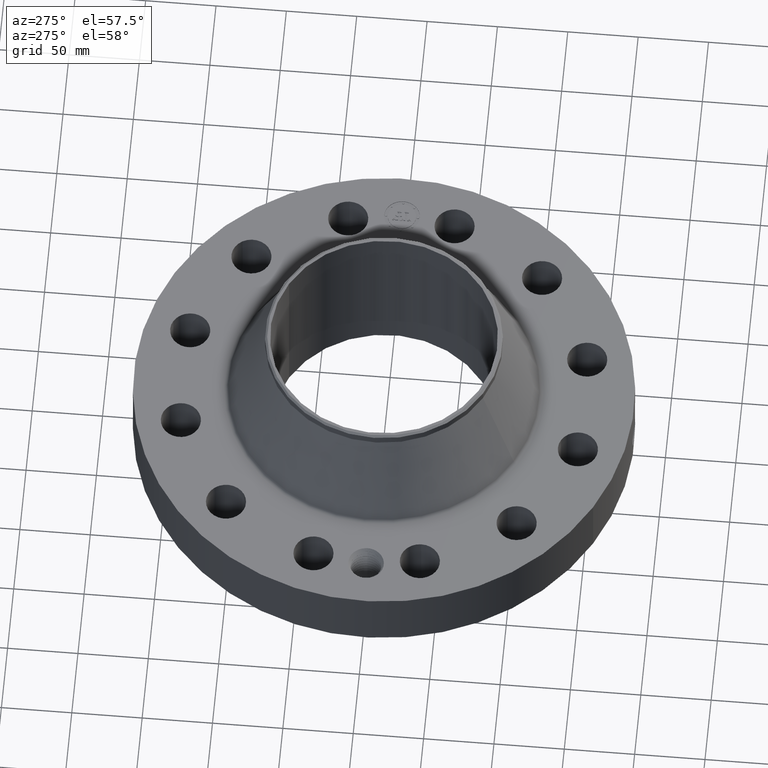
[diagram: clean part render]
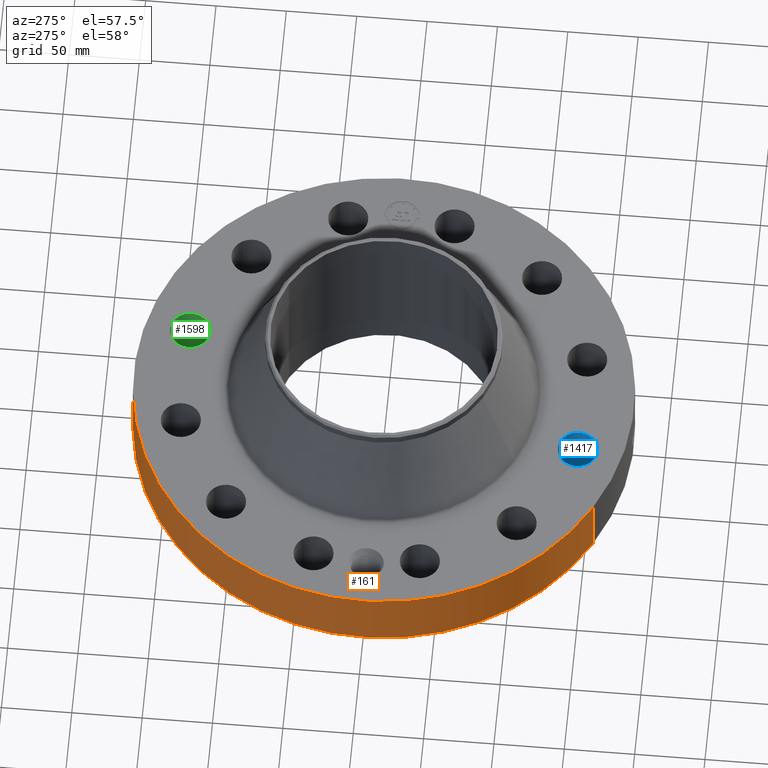
[diagram: same view with three faces highlighted in distinct colors, each labeled with its STEP entity id]
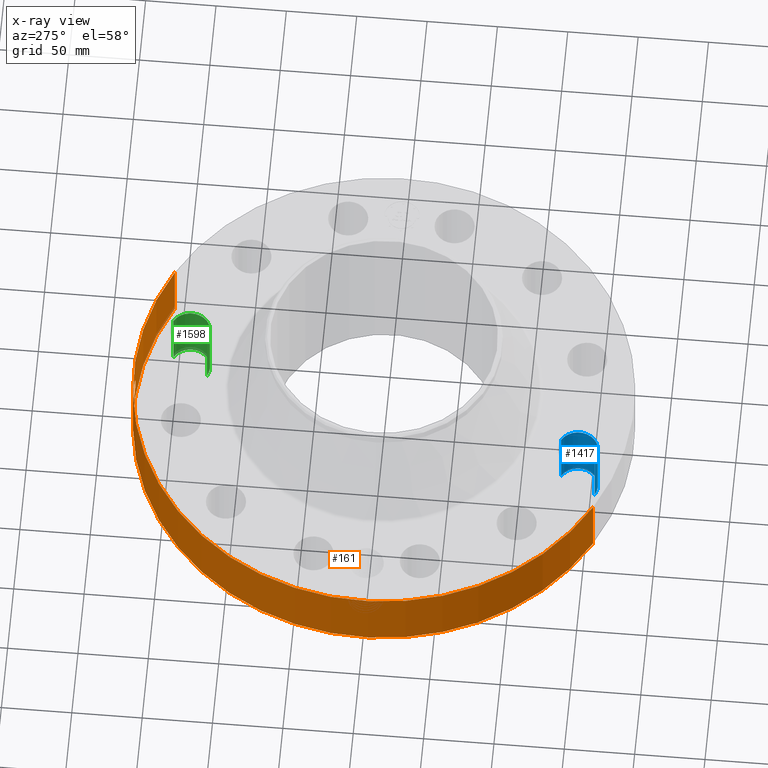
[diagram: x-ray of the same camera — body ghosted, the three highlighted faces saturated]
A machine part, auxiliary view with three faces highlighted in distinct colors.
The next image is the same camera in x-ray (body ghosted, the three faces saturated) — at least one of them is partly hidden behind the body in this view.
Their STEP definitions:

[orange] entity #161 — the highlighted cylindrical surface (partial cylindrical patch) has radius 177.8 mm, axis along (0, 0, -1).
#38=AXIS2_PLACEMENT_3D('Cylinder Axis2P3D',#35,#36,#37) ;
#42=AXIS2_PLACEMENT_3D('Circle Axis2P3D',#40,#41,$) ;
#58=AXIS2_PLACEMENT_3D('Circle Axis2P3D',#56,#57,$) ;
#35=CARTESIAN_POINT('Axis2P3D Location',(0.,0.,2.43500000001)) ;
#40=CARTESIAN_POINT('Axis2P3D Location',(0.,0.,0.250000000001)) ;
#44=CARTESIAN_POINT('Vertex',(-3.35597877024,-6.14307793326,0.250000000001)) ;
#46=CARTESIAN_POINT('Vertex',(3.35597877024,6.14307793326,0.250000000001)) ;
#49=CARTESIAN_POINT('Line Origine',(-3.35597877024,-6.14307793326,1.19)) ;
#53=CARTESIAN_POINT('Vertex',(-3.35597877024,-6.14307793326,2.13000000001)) ;
#56=CARTESIAN_POINT('Axis2P3D Location',(0.,0.,2.13000000001)) ;
#60=CARTESIAN_POINT('Vertex',(3.35597877024,6.14307793326,2.13000000001)) ;
#63=CARTESIAN_POINT('Line Origine',(3.35597877024,6.14307793326,1.19)) ;
#75=CARTESIAN_POINT('Control Point',(-0.0601120350527,6.99974189122,1.28897143737)) ;
#76=CARTESIAN_POINT('Control Point',(-0.0405058560927,6.99991026418,1.29235411414)) ;
#77=CARTESIAN_POINT('Control Point',(-0.0206129798443,6.9999979269,1.29407814657)) ;
#78=CARTESIAN_POINT('Control Point',(-0.00071646979305,6.99999996336,1.29411849829)) ;
#79=CARTESIAN_POINT('Vertex',(-0.0600955473633,6.9997422972,1.28897457472)) ;
#81=CARTESIAN_POINT('Vertex',(-0.000716315630937,6.99999996338,1.29411850868)) ;
#85=CARTESIAN_POINT('Control Point',(-0.0600954381992,6.99974203373,1.28897398318)) ;
#86=CARTESIAN_POINT('Control Point',(-0.0987490530795,6.99941017779,1.28387831706)) ;
#87=CARTESIAN_POINT('Control Point',(-0.136583697008,6.99875337345,1.27175447518)) ;
#88=CARTESIAN_POINT('Control Point',(-0.17127040385,6.9979044327,1.2535403368)) ;
#89=CARTESIAN_POINT('Vertex',(-0.17127040385,6.9979044327,1.2535403368)) ;
#93=CARTESIAN_POINT('Control Point',(-0.0298591628815,6.99993631619,0.531104232962)) ;
#94=CARTESIAN_POINT('Control Point',(-0.085711473332,6.99969807071,0.538227839711)) ;
#95=CARTESIAN_POINT('Control Point',(-0.139954243817,6.99890962562,0.555853352037)) ;
#96=CARTESIAN_POINT('Control Point',(-0.189778835797,6.99764560231,0.583433366976)) ;
#97=CARTESIAN_POINT('Control Point',(-0.278847600955,6.99469297569,0.656416870744)) ;
#98=CARTESIAN_POINT('Control Point',(-0.336085913729,6.99199490283,0.754473240482)) ;
#99=CARTESIAN_POINT('Control Point',(-0.355839513436,6.99095642126,0.809074988409)) ;
#100=CARTESIAN_POINT('Control Point',(-0.371298774075,6.99014814007,0.89839092206)) ;
#101=CARTESIAN_POINT('Control Point',(-0.362010091961,6.99063379514,0.986882010893)) ;
#102=CARTESIAN_POINT('Control Point',(-0.355272373122,6.99098604743,1.0188551659)) ;
#103=CARTESIAN_POINT('Control Point',(-0.330314360859,6.99224862663,1.09624565112)) ;
#104=CARTESIAN_POINT('Control Point',(-0.285911282103,6.99424285488,1.16472885389)) ;
#105=CARTESIAN_POINT('Control Point',(-0.252759205302,6.99558421891,1.20110996928)) ;
#106=CARTESIAN_POINT('Control Point',(-0.213966066278,6.99685947654,1.23112066075)) ;
#107=CARTESIAN_POINT('Control Point',(-0.17127040385,6.9979044327,1.2535403368)) ;
#108=CARTESIAN_POINT('Vertex',(-0.0298591628815,6.99993631619,0.531104232962)) ;
#112=CARTESIAN_POINT('Control Point',(-0.0298591628815,6.99993631619,0.531104232962)) ;
#113=CARTESIAN_POINT('Control Point',(-0.0198998119986,6.99997879914,0.530862574116)) ;
#114=CARTESIAN_POINT('Control Point',(-0.00993669240978,7.0000000039,0.53095285712)) ;
#115=CARTESIAN_POINT('Control Point',(2.72878353215E-006,7.00000000003,0.531374667805)) ;
#116=CARTESIAN_POINT('Vertex',(2.72878353782E-006,7.00000000003,0.531374667805)) ;
#120=CARTESIAN_POINT('Control Point',(0.193672295268,6.99732027582,0.58549456492)) ;
#121=CARTESIAN_POINT('Control Point',(0.149411695134,6.99854532365,0.560923800946)) ;
#122=CARTESIAN_POINT('Control Point',(0.101203555266,6.99950700729,0.543393922324)) ;
#123=CARTESIAN_POINT('Control Point',(0.0508390210276,6.99999998021,0.533532067162)) ;
#124=CARTESIAN_POINT('Control Point',(2.72878353212E-006,7.00000000003,0.531374667805)) ;
#125=CARTESIAN_POINT('Vertex',(0.193672295268,6.99732027582,0.58549456492)) ;
#129=CARTESIAN_POINT('Control Point',(0.193672295268,6.99732027582,0.58549456492)) ;
#130=CARTESIAN_POINT('Control Point',(0.22296542996,6.9965094985,0.601756312044)) ;
#131=CARTESIAN_POINT('Control Point',(0.250641712557,6.99559006644,0.620908337341)) ;
#132=CARTESIAN_POINT('Control Point',(0.276295998745,6.99460674747,0.642800260841)) ;
#133=CARTESIAN_POINT('Control Point',(0.343807235848,6.99173492095,0.71377430774)) ;
#134=CARTESIAN_POINT('Control Point',(0.387452115609,6.98932485113,0.803031423788)) ;
#135=CARTESIAN_POINT('Control Point',(0.403133421373,6.98836364674,0.867157379315)) ;
#136=CARTESIAN_POINT('Control Point',(0.40480849756,6.98831863958,0.981222298632)) ;
#137=CARTESIAN_POINT('Control Point',(0.365319570252,6.99049465419,1.08586133541)) ;
#138=CARTESIAN_POINT('Control Point',(0.341318349173,6.99175739382,1.12727318357)) ;
#139=CARTESIAN_POINT('Control Point',(0.272039738906,6.9949933436,1.21246044452)) ;
#140=CARTESIAN_POINT('Control Point',(0.17825479958,6.99805989279,1.26804752577)) ;
#141=CARTESIAN_POINT('Control Point',(0.119870710159,6.99936812508,1.28841755786)) ;
#142=CARTESIAN_POINT('Control Point',(0.0594802734674,7.0000002198,1.29707031141)) ;
#143=CARTESIAN_POINT('Control Point',(-2.58579355309E-005,6.99999999998,1.29415298434)) ;
#144=CARTESIAN_POINT('Vertex',(-2.58579355288E-005,6.99999999998,1.29415298434)) ;
#148=CARTESIAN_POINT('Control Point',(-0.000716315620338,6.99999996338,1.29411850867)) ;
#149=CARTESIAN_POINT('Control Point',(-0.000371110550666,6.9999999987,1.29413605812)) ;
#150=CARTESIAN_POINT('Control Point',(-2.58579418817E-005,6.99999999998,1.29415298434)) ;
#36=DIRECTION('Axis2P3D Direction',(0.,0.,-0.0393700787402)) ;
#37=DIRECTION('Axis2P3D XDirection',(0.0188750212049,0.0345504945626,0.)) ;
#41=DIRECTION('Axis2P3D Direction',(0.,0.,-0.0393700787402)) ;
#50=DIRECTION('Vector Direction',(0.,0.,-0.0393700787402)) ;
#57=DIRECTION('Axis2P3D Direction',(0.,0.,-0.0393700787402)) ;
#64=DIRECTION('Vector Direction',(0.,0.,-0.0393700787402)) ;
#51=VECTOR('Line Direction',#50,0.0393700787402) ;
#65=VECTOR('Line Direction',#64,0.0393700787402) ;
#69=ORIENTED_EDGE('',*,*,#48,.F.) ;
#70=ORIENTED_EDGE('',*,*,#55,.T.) ;
#71=ORIENTED_EDGE('',*,*,#62,.T.) ;
#72=ORIENTED_EDGE('',*,*,#67,.F.) ;
#153=ORIENTED_EDGE('',*,*,#83,.F.) ;
#154=ORIENTED_EDGE('',*,*,#91,.T.) ;
#155=ORIENTED_EDGE('',*,*,#110,.F.) ;
#156=ORIENTED_EDGE('',*,*,#118,.T.) ;
#157=ORIENTED_EDGE('',*,*,#127,.F.) ;
#158=ORIENTED_EDGE('',*,*,#146,.T.) ;
#159=ORIENTED_EDGE('',*,*,#151,.F.) ;
#160=FACE_BOUND('',#152,.T.) ;
#161=ADVANCED_FACE('PartBody',(#73,#160),#39,.T.) ;
#74=B_SPLINE_CURVE_WITH_KNOTS('',3,(#75,#76,#77,#78),.UNSPECIFIED.,.F.,.U.,(4,4),(4.31417608817,6.52151413302),.UNSPECIFIED.) ;
#84=B_SPLINE_CURVE_WITH_KNOTS('',3,(#85,#86,#87,#88),.UNSPECIFIED.,.F.,.U.,(4,4),(0.,4.38071082751),.UNSPECIFIED.) ;
#92=B_SPLINE_CURVE_WITH_KNOTS('',5,(#93,#94,#95,#96,#97,#98,#99,#100,#101,#102,#103,#104,#105,#106,#107),.UNSPECIFIED.,.F.,.U.,(6,3,3,3,6),(0.,9.78563712991,20.1175567769,26.119258981,35.1062441552),.UNSPECIFIED.) ;
#111=B_SPLINE_CURVE_WITH_KNOTS('',3,(#112,#113,#114,#115),.UNSPECIFIED.,.F.,.U.,(4,4),(0.,1.03878574803),.UNSPECIFIED.) ;
#119=B_SPLINE_CURVE_WITH_KNOTS('',4,(#120,#121,#122,#123,#124),.UNSPECIFIED.,.F.,.U.,(5,5),(0.,7.08398271187),.UNSPECIFIED.) ;
#128=B_SPLINE_CURVE_WITH_KNOTS('',5,(#129,#130,#131,#132,#133,#134,#135,#136,#137,#138,#139,#140,#141,#142,#143),.UNSPECIFIED.,.F.,.U.,(6,3,3,3,6),(0.,5.86051867528,17.0472821734,25.4475964239,36.5705256635),.UNSPECIFIED.) ;
#147=B_SPLINE_CURVE_WITH_KNOTS('',2,(#148,#149,#150),.UNSPECIFIED.,.F.,.U.,(3,3),(1.06180470438,1.08761865297),.UNSPECIFIED.) ;
#43=CIRCLE('generated circle',#42,7.00000000003) ;
#59=CIRCLE('generated circle',#58,7.00000000003) ;
#39=CYLINDRICAL_SURFACE('generated cylinder',#38,7.00000000003) ;
#48=EDGE_CURVE('',#45,#47,#43,.T.) ;
#55=EDGE_CURVE('',#45,#54,#52,.F.) ;
#62=EDGE_CURVE('',#54,#61,#59,.T.) ;
#67=EDGE_CURVE('',#47,#61,#66,.F.) ;
#83=EDGE_CURVE('',#80,#82,#74,.T.) ;
#91=EDGE_CURVE('',#80,#90,#84,.T.) ;
#110=EDGE_CURVE('',#109,#90,#92,.T.) ;
#118=EDGE_CURVE('',#109,#117,#111,.T.) ;
#127=EDGE_CURVE('',#126,#117,#119,.T.) ;
#146=EDGE_CURVE('',#126,#145,#128,.T.) ;
#151=EDGE_CURVE('',#82,#145,#147,.T.) ;
#68=EDGE_LOOP('',(#69,#70,#71,#72)) ;
#152=EDGE_LOOP('',(#153,#154,#155,#156,#157,#158,#159)) ;
#73=FACE_OUTER_BOUND('',#68,.T.) ;
#52=LINE('Line',#49,#51) ;
#66=LINE('Line',#63,#65) ;
#45=VERTEX_POINT('',#44) ;
#47=VERTEX_POINT('',#46) ;
#54=VERTEX_POINT('',#53) ;
#61=VERTEX_POINT('',#60) ;
#80=VERTEX_POINT('',#79) ;
#82=VERTEX_POINT('',#81) ;
#90=VERTEX_POINT('',#89) ;
#109=VERTEX_POINT('',#108) ;
#117=VERTEX_POINT('',#116) ;
#126=VERTEX_POINT('',#125) ;
#145=VERTEX_POINT('',#144) ;

[blue] entity #1417 — the highlighted cylindrical surface (edge-blend (fillet) strip) has radius 14.224 mm, axis along (0, -0, -1).
#298=AXIS2_PLACEMENT_3D('Circle Axis2P3D',#296,#297,$) ;
#698=AXIS2_PLACEMENT_3D('Circle Axis2P3D',#696,#697,$) ;
#1399=AXIS2_PLACEMENT_3D('Cylinder Axis2P3D',#1396,#1397,#1398) ;
#296=CARTESIAN_POINT('Axis2P3D Location',(-1.48820950935,-5.55407350118,0.250000000001)) ;
#300=CARTESIAN_POINT('Vertex',(-1.21973120773,-5.06262726652,0.250000000001)) ;
#302=CARTESIAN_POINT('Vertex',(-1.75668781096,-6.04551973584,0.250000000001)) ;
#691=CARTESIAN_POINT('Vertex',(-1.75668781096,-6.04551973584,2.13000000001)) ;
#693=CARTESIAN_POINT('Vertex',(-1.21973120773,-5.06262726652,2.13000000001)) ;
#696=CARTESIAN_POINT('Axis2P3D Location',(-1.48820950935,-5.55407350118,2.13000000001)) ;
#1396=CARTESIAN_POINT('Axis2P3D Location',(-1.48820950935,-5.55407350118,2.12606299213)) ;
#1401=CARTESIAN_POINT('Line Origine',(-1.21973120773,-5.06262726652,1.19)) ;
#1406=CARTESIAN_POINT('Line Origine',(-1.75668781096,-6.04551973584,1.19)) ;
#297=DIRECTION('Axis2P3D Direction',(0.,0.,-0.0393700787402)) ;
#697=DIRECTION('Axis2P3D Direction',(0.,0.,-0.0393700787402)) ;
#1397=DIRECTION('Axis2P3D Direction',(0.,-0.,-0.0393700787402)) ;
#1398=DIRECTION('Axis2P3D XDirection',(-0.0188750212049,-0.0345504945626,0.)) ;
#1402=DIRECTION('Vector Direction',(0.,0.,-0.0393700787402)) ;
#1407=DIRECTION('Vector Direction',(0.,0.,-0.0393700787402)) ;
#1403=VECTOR('Line Direction',#1402,0.0393700787402) ;
#1408=VECTOR('Line Direction',#1407,0.0393700787402) ;
#1412=ORIENTED_EDGE('',*,*,#1405,.F.) ;
#1413=ORIENTED_EDGE('',*,*,#304,.T.) ;
#1414=ORIENTED_EDGE('',*,*,#1410,.T.) ;
#1415=ORIENTED_EDGE('',*,*,#700,.F.) ;
#1417=ADVANCED_FACE('PartBody',(#1416),#1400,.F.) ;
#299=CIRCLE('generated circle',#298,0.560000000002) ;
#699=CIRCLE('generated circle',#698,0.560000000002) ;
#1400=CYLINDRICAL_SURFACE('generated cylinder',#1399,0.560000000002) ;
#304=EDGE_CURVE('',#301,#303,#299,.T.) ;
#700=EDGE_CURVE('',#694,#692,#699,.T.) ;
#1405=EDGE_CURVE('',#301,#694,#1404,.F.) ;
#1410=EDGE_CURVE('',#303,#692,#1409,.F.) ;
#1411=EDGE_LOOP('',(#1412,#1413,#1414,#1415)) ;
#1416=FACE_OUTER_BOUND('',#1411,.T.) ;
#1404=LINE('Line',#1401,#1403) ;
#1409=LINE('Line',#1406,#1408) ;
#301=VERTEX_POINT('',#300) ;
#303=VERTEX_POINT('',#302) ;
#692=VERTEX_POINT('',#691) ;
#694=VERTEX_POINT('',#693) ;

[green] entity #1598 — the highlighted cylindrical surface (edge-blend (fillet) strip) has radius 14.224 mm, axis along (0, 0, -1).
#415=AXIS2_PLACEMENT_3D('Circle Axis2P3D',#413,#414,$) ;
#797=AXIS2_PLACEMENT_3D('Circle Axis2P3D',#795,#796,$) ;
#1573=AXIS2_PLACEMENT_3D('Cylinder Axis2P3D',#1570,#1571,#1572) ;
#408=CARTESIAN_POINT('Vertex',(1.21973120773,5.06262726652,0.250000000001)) ;
#410=CARTESIAN_POINT('Vertex',(1.75668781096,6.04551973584,0.250000000001)) ;
#413=CARTESIAN_POINT('Axis2P3D Location',(1.48820950935,5.55407350118,0.250000000001)) ;
#795=CARTESIAN_POINT('Axis2P3D Location',(1.48820950935,5.55407350118,2.13000000001)) ;
#799=CARTESIAN_POINT('Vertex',(1.75668781096,6.04551973584,2.13000000001)) ;
#801=CARTESIAN_POINT('Vertex',(1.21973120773,5.06262726652,2.13000000001)) ;
#1570=CARTESIAN_POINT('Axis2P3D Location',(1.48820950935,5.55407350118,2.12606299213)) ;
#1575=CARTESIAN_POINT('Line Origine',(1.21973120773,5.06262726652,1.19)) ;
#1580=CARTESIAN_POINT('Line Origine',(1.75668781096,6.04551973584,1.19)) ;
#414=DIRECTION('Axis2P3D Direction',(0.,0.,-0.0393700787402)) ;
#796=DIRECTION('Axis2P3D Direction',(0.,0.,-0.0393700787402)) ;
#1571=DIRECTION('Axis2P3D Direction',(0.,0.,-0.0393700787402)) ;
#1572=DIRECTION('Axis2P3D XDirection',(0.0188750212049,0.0345504945626,0.)) ;
#1576=DIRECTION('Vector Direction',(0.,0.,-0.0393700787402)) ;
#1581=DIRECTION('Vector Direction',(0.,0.,-0.0393700787402)) ;
#1577=VECTOR('Line Direction',#1576,0.0393700787402) ;
#1582=VECTOR('Line Direction',#1581,0.0393700787402) ;
#1593=ORIENTED_EDGE('',*,*,#1584,.F.) ;
#1594=ORIENTED_EDGE('',*,*,#417,.T.) ;
#1595=ORIENTED_EDGE('',*,*,#1579,.T.) ;
#1596=ORIENTED_EDGE('',*,*,#803,.F.) ;
#1598=ADVANCED_FACE('PartBody',(#1597),#1574,.F.) ;
#416=CIRCLE('generated circle',#415,0.560000000002) ;
#798=CIRCLE('generated circle',#797,0.560000000002) ;
#1574=CYLINDRICAL_SURFACE('generated cylinder',#1573,0.560000000002) ;
#417=EDGE_CURVE('',#411,#409,#416,.T.) ;
#803=EDGE_CURVE('',#800,#802,#798,.T.) ;
#1579=EDGE_CURVE('',#409,#802,#1578,.F.) ;
#1584=EDGE_CURVE('',#411,#800,#1583,.F.) ;
#1592=EDGE_LOOP('',(#1593,#1594,#1595,#1596)) ;
#1597=FACE_OUTER_BOUND('',#1592,.T.) ;
#1578=LINE('Line',#1575,#1577) ;
#1583=LINE('Line',#1580,#1582) ;
#409=VERTEX_POINT('',#408) ;
#411=VERTEX_POINT('',#410) ;
#800=VERTEX_POINT('',#799) ;
#802=VERTEX_POINT('',#801) ;